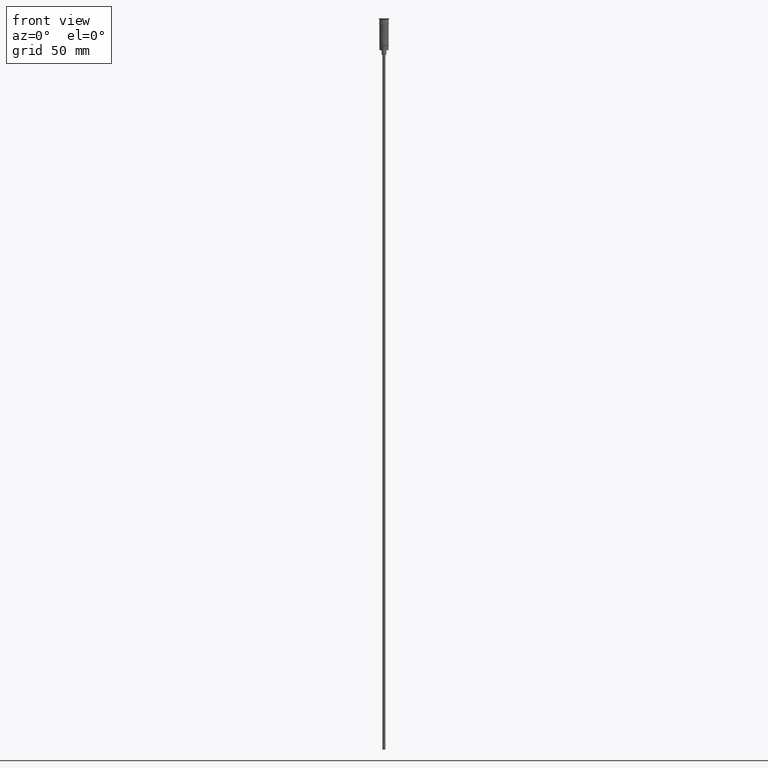
[diagram: clean part render]
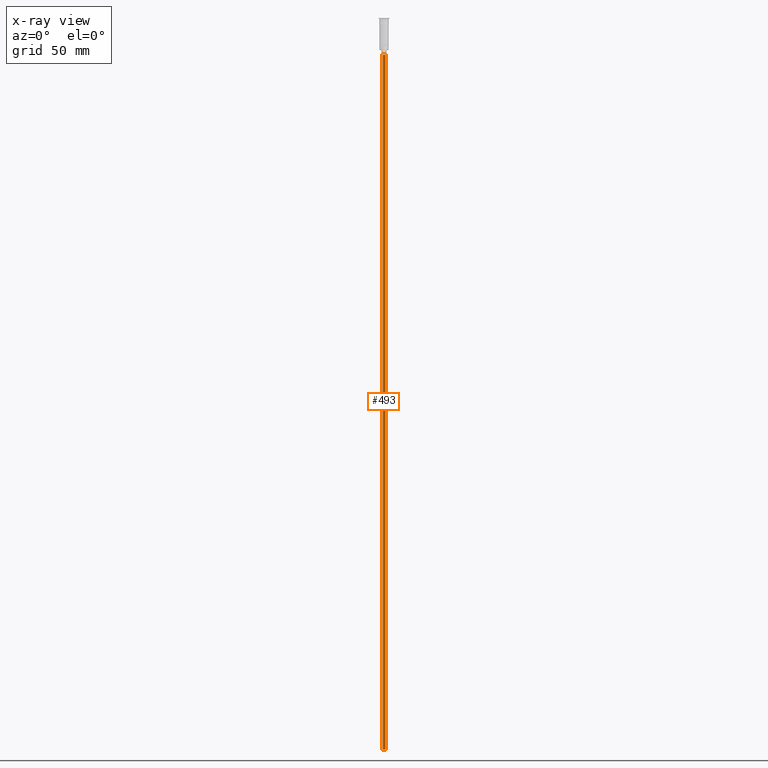
[diagram: x-ray — body ghosted, one internal face saturated and labeled with its STEP entity id]
A machine part, front view, then the same camera in x-ray: the body is ghosted and one INTERNAL B-rep face — a face not visible from any outside direction — is saturated and labeled: STEP entity #493.
In plain terms, the highlighted cylindrical surface (edge-blend (fillet) strip) has radius 1 mm, axis along (-0, -0, 1).
Its self-contained STEP definition (entity closure, byte-faithful):
#18 = DIRECTION ( 'NONE',  ( -0.000000000000000000, -0.000000000000000000, 1.000000000000000000 ) ) ;
#37 = CARTESIAN_POINT ( 'NONE',  ( -0.9999999999999997780, 1.224646799147352961E-16, -23.50000000000000000 ) ) ;
#42 = CARTESIAN_POINT ( 'NONE',  ( 0.9999999999999997780, 0.000000000000000000, -470.5000000000000568 ) ) ;
#94 = ORIENTED_EDGE ( 'NONE', *, *, #1564, .T. ) ;
#111 = DIRECTION ( 'NONE',  ( -0.000000000000000000, -0.000000000000000000, 1.000000000000000000 ) ) ;
#156 = CARTESIAN_POINT ( 'NONE',  ( 0.9999999999999997780, 0.000000000000000000, -470.5000000000000568 ) ) ;
#162 = ORIENTED_EDGE ( 'NONE', *, *, #879, .F. ) ;
#173 = DIRECTION ( 'NONE',  ( 0.000000000000000000, 0.000000000000000000, -1.000000000000000000 ) ) ;
#181 = LINE ( 'NONE', #799, #634 ) ;
#274 = CIRCLE ( 'NONE', #401, 0.9999999999999997780 ) ;
#313 = ORIENTED_EDGE ( 'NONE', *, *, #905, .F. ) ;
#314 = DIRECTION ( 'NONE',  ( -0.000000000000000000, -0.000000000000000000, 1.000000000000000000 ) ) ;
#401 = AXIS2_PLACEMENT_3D ( 'NONE', #1562, #505, #1468 ) ;
#457 = CARTESIAN_POINT ( 'NONE',  ( -0.9999999999999997780, 1.224646799147352961E-16, -470.5000000000000568 ) ) ;
#493 = ADVANCED_FACE ( 'NONE', ( #587 ), #1209, .T. ) ;
#505 = DIRECTION ( 'NONE',  ( 0.000000000000000000, 0.000000000000000000, -1.000000000000000000 ) ) ;
#569 = EDGE_LOOP ( 'NONE', ( #313, #993, #94, #162 ) ) ;
#587 = FACE_OUTER_BOUND ( 'NONE', #569, .T. ) ;
#634 = VECTOR ( 'NONE', #314, 1000.000000000000000 ) ;
#749 = LINE ( 'NONE', #156, #1432 ) ;
#777 = CARTESIAN_POINT ( 'NONE',  ( 0.000000000000000000, 0.000000000000000000, -23.50000000000000000 ) ) ;
#799 = CARTESIAN_POINT ( 'NONE',  ( -0.9999999999999997780, 1.224646799147352961E-16, -470.5000000000000568 ) ) ;
#879 = EDGE_CURVE ( 'NONE', #1591, #1326, #749, .T. ) ;
#905 = EDGE_CURVE ( 'NONE', #1254, #1591, #274, .T. ) ;
#993 = ORIENTED_EDGE ( 'NONE', *, *, #1533, .T. ) ;
#1198 = VERTEX_POINT ( 'NONE', #37 ) ;
#1205 = CARTESIAN_POINT ( 'NONE',  ( 0.9999999999999997780, 0.000000000000000000, -23.50000000000000000 ) ) ;
#1209 = CYLINDRICAL_SURFACE ( 'NONE', #1595, 0.9999999999999997780 ) ;
#1211 = AXIS2_PLACEMENT_3D ( 'NONE', #777, #173, #1272 ) ;
#1254 = VERTEX_POINT ( 'NONE', #457 ) ;
#1272 = DIRECTION ( 'NONE',  ( -1.000000000000000000, 0.000000000000000000, 0.000000000000000000 ) ) ;
#1316 = DIRECTION ( 'NONE',  ( 1.000000000000000000, 0.000000000000000000, 0.000000000000000000 ) ) ;
#1326 = VERTEX_POINT ( 'NONE', #1205 ) ;
#1332 = CARTESIAN_POINT ( 'NONE',  ( 0.000000000000000000, 0.000000000000000000, -470.5000000000000568 ) ) ;
#1336 = CIRCLE ( 'NONE', #1211, 0.9999999999999997780 ) ;
#1432 = VECTOR ( 'NONE', #18, 1000.000000000000000 ) ;
#1468 = DIRECTION ( 'NONE',  ( -1.000000000000000000, 0.000000000000000000, 0.000000000000000000 ) ) ;
#1533 = EDGE_CURVE ( 'NONE', #1254, #1198, #181, .T. ) ;
#1562 = CARTESIAN_POINT ( 'NONE',  ( 0.000000000000000000, 0.000000000000000000, -470.5000000000000568 ) ) ;
#1564 = EDGE_CURVE ( 'NONE', #1198, #1326, #1336, .T. ) ;
#1591 = VERTEX_POINT ( 'NONE', #42 ) ;
#1595 = AXIS2_PLACEMENT_3D ( 'NONE', #1332, #111, #1316 ) ;